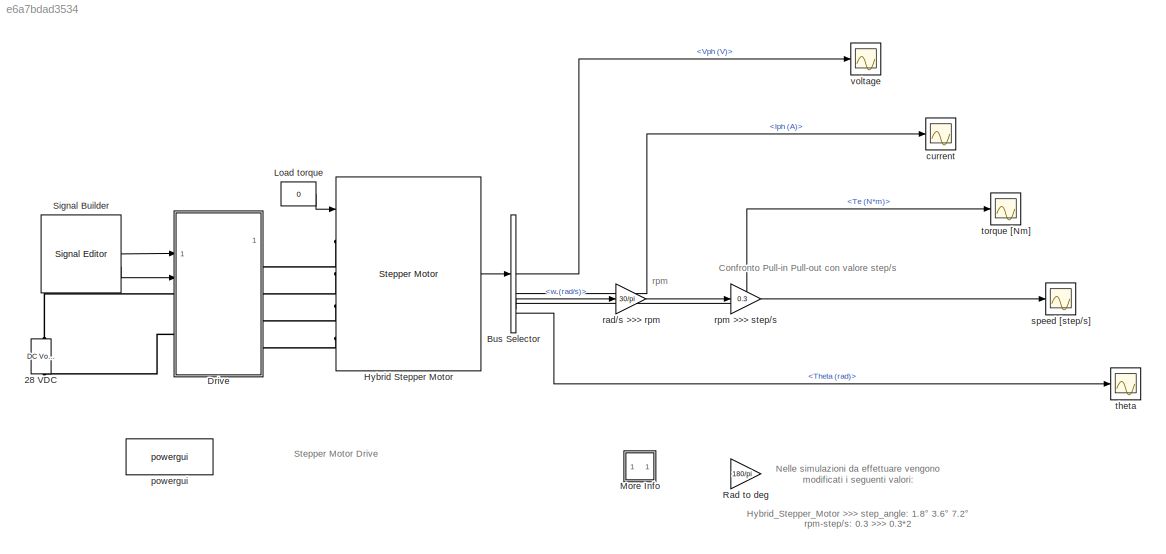
MODEL slx_e6a7bdad3534
KIND model
CONFIG AbsTol = auto
CONFIG EnableMultiTasking = on
CONFIG FixedStep = Ts
CONFIG InitFcn = Ts=1e-6;
CONFIG MaxStep = 2e-6
CONFIG MinStep = auto
CONFIG PreLoadFcn = assignin('base','Ts',1e-6);
CONFIG RelTol = auto
CONFIG SampleTimeConstraint = Unconstrained
CONFIG SolverName = FixedStepDiscrete
CONFIG StartTime = 0.0
CONFIG StopTime = 0.25
BLOCK [Reference] 28 VDC  REF=spsDCVoltageSourceLib/DC Voltage Source
  NameLocation = right
  SourceBlock = spsDCVoltageSourceLib/DC Voltage Source
  SourceType = DC Voltage Source
BLOCK [BusSelector] Bus Selector
  OutputSignals = Vph (V),Iph (A),Te (N*m),w (rad/s),Theta (rad)
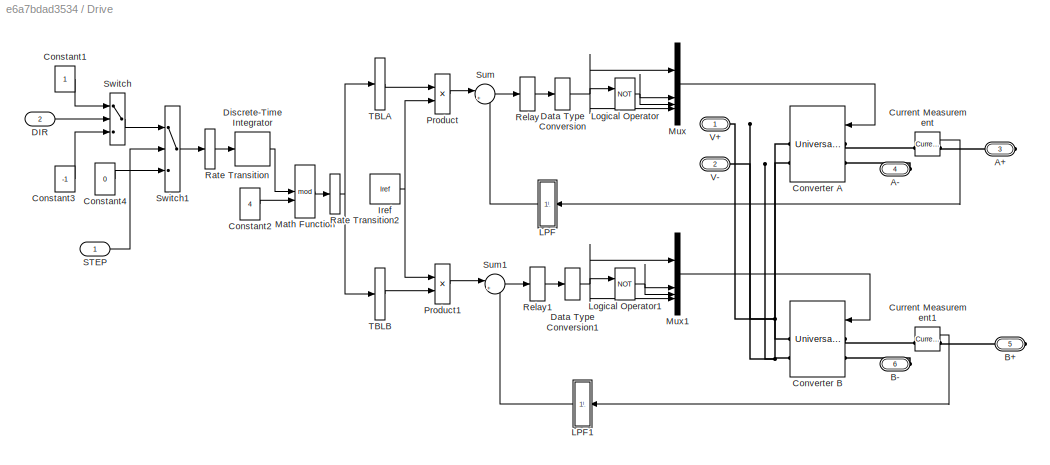
BLOCK [SubSystem] Drive
BLOCK [PMIOPort] Drive/A+
  Port = 3
  Side = Right
BLOCK [PMIOPort] Drive/A-
  Port = 4
  Side = Right
BLOCK [PMIOPort] Drive/B+
  Port = 5
  Side = Right
BLOCK [PMIOPort] Drive/B-
  Port = 6
  Side = Right
BLOCK [Constant] Drive/Constant1
  SampleTime = Ts
BLOCK [Constant] Drive/Constant2
  SampleTime = Nstep*Ts
  Value = 4
BLOCK [Constant] Drive/Constant3
  SampleTime = Ts
  Value = -1
BLOCK [Constant] Drive/Constant4
  SampleTime = Ts
  Value = 0
BLOCK [Reference] Drive/Converter A  REF=spsUniversalBridgeLib/Universal Bridge
  NameLocation = top
  SourceBlock = spsUniversalBridgeLib/Universal Bridge
  SourceType = Universal Bridge
BLOCK [Reference] Drive/Converter B  REF=spsUniversalBridgeLib/Universal Bridge
  NameLocation = top
  SourceBlock = spsUniversalBridgeLib/Universal Bridge
  SourceType = Universal Bridge
BLOCK [Reference] Drive/Current Measurement  REF=spsCurrentMeasurementLib/Current Measurement
  SourceBlock = spsCurrentMeasurementLib/Current Measurement
  SourceType = Current Measurement
BLOCK [Reference] Drive/Current Measurement1  REF=spsCurrentMeasurementLib/Current Measurement
  SourceBlock = spsCurrentMeasurementLib/Current Measurement
  SourceType = Current Measurement
BLOCK [Inport] Drive/DIR
  Port = 2
BLOCK [DataTypeConversion] Drive/Data Type Conversion
  RndMeth = Floor
  SaturateOnIntegerOverflow = off
BLOCK [DataTypeConversion] Drive/Data Type Conversion1
  RndMeth = Floor
  SaturateOnIntegerOverflow = off
BLOCK [DiscreteIntegrator] Drive/Discrete-Time Integrator
  ICPrevOutput = DiscIntNeverNeededParam
  ICPrevScaledInput = DiscIntNeverNeededParam
  IntegratorMethod = Accumulation: Forward Euler
  SampleTime = Nstep*Ts
BLOCK [Constant] Drive/Iref
  NameLocation = top
  SampleTime = Ts
  Value = Iref
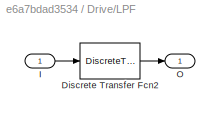
BLOCK [SubSystem] Drive/LPF
  NameLocation = top
BLOCK [DiscreteTransferFcn] Drive/LPF/Discrete Transfer Fcn2
  Denominator = DD
  InputPortMap = u0
  Numerator = NN
  SampleTime = Ts
BLOCK [Inport] Drive/LPF/I
BLOCK [Outport] Drive/LPF/O
  VectorParamsAs1DForOutWhenUnconnected = off
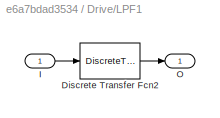
BLOCK [SubSystem] Drive/LPF1
  NameLocation = top
BLOCK [DiscreteTransferFcn] Drive/LPF1/Discrete Transfer Fcn2
  Denominator = DD
  InputPortMap = u0
  Numerator = NN
  SampleTime = Ts
BLOCK [Inport] Drive/LPF1/I
BLOCK [Outport] Drive/LPF1/O
  VectorParamsAs1DForOutWhenUnconnected = off
BLOCK [Logic] Drive/Logical Operator
  AllPortsSameDT = off
  Operator = NOT
  OutDataTypeStr = boolean
BLOCK [Logic] Drive/Logical Operator1
  AllPortsSameDT = off
  Operator = NOT
  OutDataTypeStr = boolean
BLOCK [Math] Drive/Math Function
  Operator = mod
  SampleTime = Nstep*Ts
  SignedPower = on
BLOCK [Mux] Drive/Mux
  DisplayOption = bar
BLOCK [Mux] Drive/Mux1
  DisplayOption = bar
BLOCK [Product] Drive/Product
  RndMeth = Zero
BLOCK [Product] Drive/Product1
  RndMeth = Zero
BLOCK [RateTransition] Drive/Rate Transition
BLOCK [RateTransition] Drive/Rate Transition2
  NameLocation = top
BLOCK [Relay] Drive/Relay
  OffSwitchValue = -0.01
  OnSwitchValue = 0.01
BLOCK [Relay] Drive/Relay1
  OffSwitchValue = -0.01
  OnSwitchValue = 0.01
  OutDataTypeStr = Inherit: Inherit via back propagation
BLOCK [Inport] Drive/STEP
BLOCK [Sum] Drive/Sum
  Inputs = |+-
  OutDataTypeStr = Inherit: Same as first input
BLOCK [Sum] Drive/Sum1
  Inputs = |+-
  OutDataTypeStr = Inherit: Same as first input
BLOCK [Switch] Drive/Switch
  InputSameDT = off
  SampleTime = Ts
  SaturateOnIntegerOverflow = off
  Threshold = 0.5
  ZeroCross = off
BLOCK [Switch] Drive/Switch1
  InputSameDT = off
  SampleTime = Ts
  SaturateOnIntegerOverflow = off
  Threshold = 0.5
  ZeroCross = off
BLOCK [Lookup_n-D] Drive/TBLA
  BreakpointsForDimension1 = [0:3]
  BreakpointsForDimension2 = [0 571.55 685.8 800.15 914.4 1028.8 1143.1 1257.4 1371.7 1486 1600.3 1714.6 1828.9 1943.2 2057.5 2171.8 2286.1 2400.5 2514.7 2629.1 2743.3 2857.7 2971.9 3086.3 3200.5 3314.9 3429.2]
  InputPortMap = u0
  InternalRulePriority = Speed
  NumberOfTableDimensions = 1
  RndMeth = Simplest
  Table = [1 0 -1 0]
BLOCK [Lookup_n-D] Drive/TBLB
  BreakpointsForDimension1 = [0:3]
  BreakpointsForDimension2 = [0 571.55 685.8 800.15 914.4 1028.8 1143.1 1257.4 1371.7 1486 1600.3 1714.6 1828.9 1943.2 2057.5 2171.8 2286.1 2400.5 2514.7 2629.1 2743.3 2857.7 2971.9 3086.3 3200.5 3314.9 3429.2]
  InputPortMap = u0
  InternalRulePriority = Speed
  NumberOfTableDimensions = 1
  RndMeth = Simplest
  Table = [0 1 0 -1]
BLOCK [PMIOPort] Drive/V+
  Side = Left
BLOCK [PMIOPort] Drive/V-
  Port = 2
  Side = Left
BLOCK [Reference] Hybrid Stepper Motor  REF=spsStepperMotorLib/Stepper Motor
  SourceBlock = spsStepperMotorLib/Stepper Motor
  SourceType = Stepper Motor
BLOCK [Constant] Load torque
  NameLocation = top
  Value = 0
BLOCK [SubSystem] More Info
  OpenFcn = showExample("simscapeelectricalsps/StepperMotorExample")
BLOCK [Gain] Rad to deg
  Commented = on
  Gain = 180/pi
BLOCK [Reference] Signal Builder  REF=SignalEditorBlockLib/Signal Editor
  SourceBlock = SignalEditorBlockLib/Signal Editor
  SourceType = SignalEditor
  UserDataPersistent = on
BLOCK [Scope] current
  Floating = off
  NumInputPorts = 1
  ScopeSpecificationString = Simulink.scopes.TimeScopeBlockCfg('CurrentConfiguration', extmgr.ConfigurationSet(extmgr.Configuration('Core','General UI',true),extmgr.Configuration('Core','Source UI',true),extmgr.Configuration('Sources','WiredSimulink',true,'DataLoggingVariableName','ScopeData1'),extmgr.Configuration('Visuals','Time Domain',true,'SerializedDisplays',{struct('MinYLimReal','-2.95212','MaxYLimReal','2.95639','YLab...<+1384ch>
BLOCK [Reference] powergui  REF=spspowerguiLib/powergui
  SourceBlock = spspowerguiLib/powergui
  SourceType = PSB option menu block
BLOCK [Gain] rad//s >>> rpm
  Gain = 30/pi
BLOCK [Gain] rpm >>> step//s
  Gain = 0.3
BLOCK [Scope] speed  [step//s]
  Floating = off
  NumInputPorts = 1
  ScopeSpecificationString = Simulink.scopes.TimeScopeBlockCfg('CurrentConfiguration', extmgr.ConfigurationSet(extmgr.Configuration('Core','General UI',true),extmgr.Configuration('Core','Source UI',true),extmgr.Configuration('Sources','WiredSimulink',true,'DataLoggingVariableName','speed_out_18','DataLogging',true,'DataLoggingSaveFormat','Array'),extmgr.Configuration('Visuals','Time Domain',true,'SerializedDisplays',{struct('...<+1442ch>
BLOCK [Scope] theta
  Floating = off
  NumInputPorts = 1
  ScopeSpecificationString = Simulink.scopes.TimeScopeBlockCfg('CurrentConfiguration', extmgr.ConfigurationSet(extmgr.Configuration('Core','General UI',true),extmgr.Configuration('Core','Source UI',true),extmgr.Configuration('Sources','WiredSimulink',true,'DataLoggingVariableName','theta','DataLogging',true,'DataLoggingSaveFormat','Array'),extmgr.Configuration('Visuals','Time Domain',true,'SerializedDisplays',{struct('MinYLim...<+1418ch>
BLOCK [Scope] torque [Nm]
  Floating = off
  NumInputPorts = 1
  ScopeSpecificationString = Simulink.scopes.TimeScopeBlockCfg('CurrentConfiguration', extmgr.ConfigurationSet(extmgr.Configuration('Core','General UI',true),extmgr.Configuration('Core','Source UI',true),extmgr.Configuration('Sources','WiredSimulink',true,'DataLoggingVariableName','torque_out_18','DataLogging',true,'DataLoggingSaveFormat','Array'),extmgr.Configuration('Visuals','Time Domain',true,'SerializedDisplays',{struct(...<+1423ch>
BLOCK [Scope] voltage
  Floating = off
  NumInputPorts = 1
  ScopeSpecificationString = Simulink.scopes.TimeScopeBlockCfg('CurrentConfiguration', extmgr.ConfigurationSet(extmgr.Configuration('Core','General UI',true),extmgr.Configuration('Core','Source UI',true),extmgr.Configuration('Sources','WiredSimulink',true),extmgr.Configuration('Visuals','Time Domain',true),extmgr.Configuration('Tools','Plot Navigation',true),extmgr.Configuration('Tools','Measurements',true)),'Version','2023b'...<+1ch>
ANNOTATION (root): Confronto Pull-in Pull-out con valore step/s
ANNOTATION (root): Nelle simulazioni da effettuare vengono modificati i seguenti valori: Hybrid_Stepper_Motor >>> step_angle: 1.8° 3.6° 7.2° rpm-step/s: 0.3 >>> 0.3*2
ANNOTATION (root): Stepper Motor Drive
ANNOTATION (root): rpm
LINE Bus Selector:1 -> voltage:1
LINE Bus Selector:2 -> current:1
LINE Bus Selector:3 -> torque [Nm]:1
LINE Bus Selector:4 -> rad//s >>> rpm:1
LINE Bus Selector:5 -> theta:1
LINE Drive/Constant1:1 -> Drive/Switch:1
LINE Drive/Constant2:1 -> Drive/Math Function:2
LINE Drive/Constant3:1 -> Drive/Switch:3
LINE Drive/Constant4:1 -> Drive/Switch1:3
LINE Drive/Current Measurement1:1 -> Drive/LPF1:1
LINE Drive/Current Measurement:1 -> Drive/LPF:1
LINE Drive/DIR:1 -> Drive/Switch:2
NET Drive/Data Type Conversion1:1 -> Drive/Logical Operator1:1, Drive/Mux1:1, Drive/Mux1:4
NET Drive/Data Type Conversion:1 -> Drive/Logical Operator:1, Drive/Mux:1, Drive/Mux:4
LINE Drive/Discrete-Time Integrator:1 -> Drive/Math Function:1
NET Drive/Iref:1 -> Drive/Product1:1, Drive/Product:2
LINE Drive/LPF/Discrete Transfer Fcn2:1 -> Drive/LPF/O:1
LINE Drive/LPF/I:1 -> Drive/LPF/Discrete Transfer Fcn2:1
LINE Drive/LPF1/Discrete Transfer Fcn2:1 -> Drive/LPF1/O:1
LINE Drive/LPF1/I:1 -> Drive/LPF1/Discrete Transfer Fcn2:1
LINE Drive/LPF1:1 -> Drive/Sum1:2
LINE Drive/LPF:1 -> Drive/Sum:2
NET Drive/Logical Operator1:1 -> Drive/Mux1:2, Drive/Mux1:3
NET Drive/Logical Operator:1 -> Drive/Mux:2, Drive/Mux:3
LINE Drive/Math Function:1 -> Drive/Rate Transition2:1
LINE Drive/Mux1:1 -> Drive/Converter B:1
LINE Drive/Mux:1 -> Drive/Converter A:1
LINE Drive/Product1:1 -> Drive/Sum1:1
LINE Drive/Product:1 -> Drive/Sum:1
NET Drive/Rate Transition2:1 -> Drive/TBLA:1, Drive/TBLB:1
LINE Drive/Rate Transition:1 -> Drive/Discrete-Time Integrator:1
LINE Drive/Relay1:1 -> Drive/Data Type Conversion1:1
LINE Drive/Relay:1 -> Drive/Data Type Conversion:1
LINE Drive/STEP:1 -> Drive/Switch1:2
LINE Drive/Sum1:1 -> Drive/Relay1:1
LINE Drive/Sum:1 -> Drive/Relay:1
LINE Drive/Switch1:1 -> Drive/Rate Transition:1
LINE Drive/Switch:1 -> Drive/Switch1:1
LINE Drive/TBLA:1 -> Drive/Product:1
LINE Drive/TBLB:1 -> Drive/Product1:2
LINE Hybrid Stepper Motor:1 -> Bus Selector:1
LINE Load torque:1 -> Hybrid Stepper Motor:1
LINE Signal Builder:1 -> Drive:1
LINE Signal Builder:2 -> Drive:2
LINE rad//s >>> rpm:1 -> rpm >>> step//s:1
LINE rpm >>> step//s:1 -> speed  [step//s]:1
PLINE 28 VDC:LConn1 -- Drive:LConn2
PLINE 28 VDC:RConn1 -- Drive:LConn1
PLINE Drive/A+:RConn1 -- Drive/Current Measurement:RConn1
PLINE Drive/A-:RConn1 -- Drive/Converter A:LConn2
PLINE Drive/B+:RConn1 -- Drive/Current Measurement1:RConn1
PLINE Drive/B-:RConn1 -- Drive/Converter B:LConn2
PLINE Drive/Converter A:LConn1 -- Drive/Current Measurement:LConn1
PNET net1: Drive/Converter A:RConn1 -- Drive/Converter B:RConn1 -- Drive/V+:RConn1
PNET net2: Drive/Converter A:RConn2 -- Drive/Converter B:RConn2 -- Drive/V-:RConn1
PLINE Drive/Converter B:LConn1 -- Drive/Current Measurement1:LConn1
PLINE Drive:RConn1 -- Hybrid Stepper Motor:LConn1
PLINE Drive:RConn2 -- Hybrid Stepper Motor:LConn2
PLINE Drive:RConn3 -- Hybrid Stepper Motor:LConn3
PLINE Drive:RConn4 -- Hybrid Stepper Motor:LConn4
note: NET lines group one-source signal fan-out (src -> all destinations, sorted); 1:1 wires keep LINE; PNET lines group multi-terminal physical nets as a canonical sorted terminal list (undirected conserving connections); 2-terminal nets keep the pairwise PLINE form
